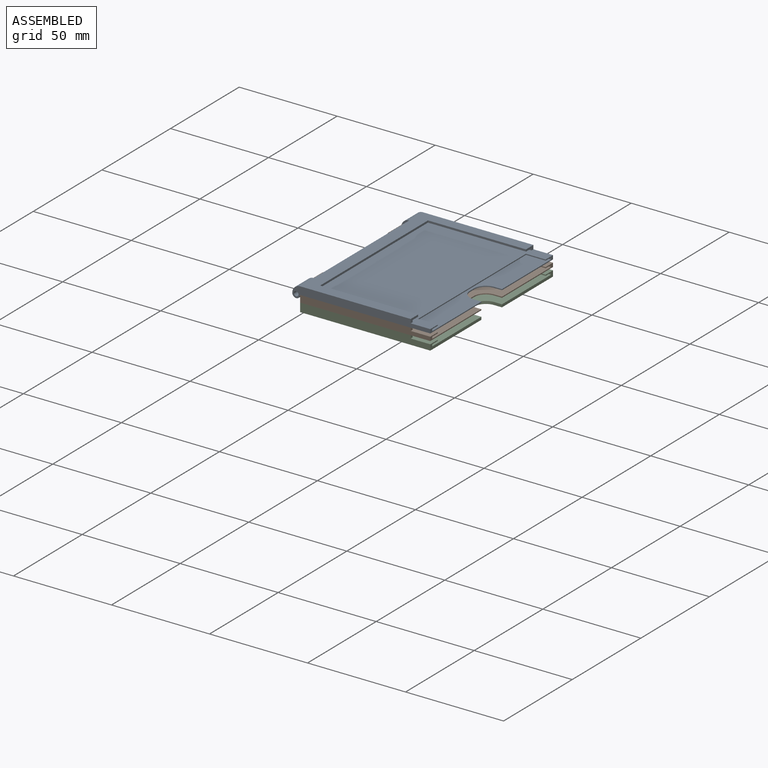
[diagram: assembled view]
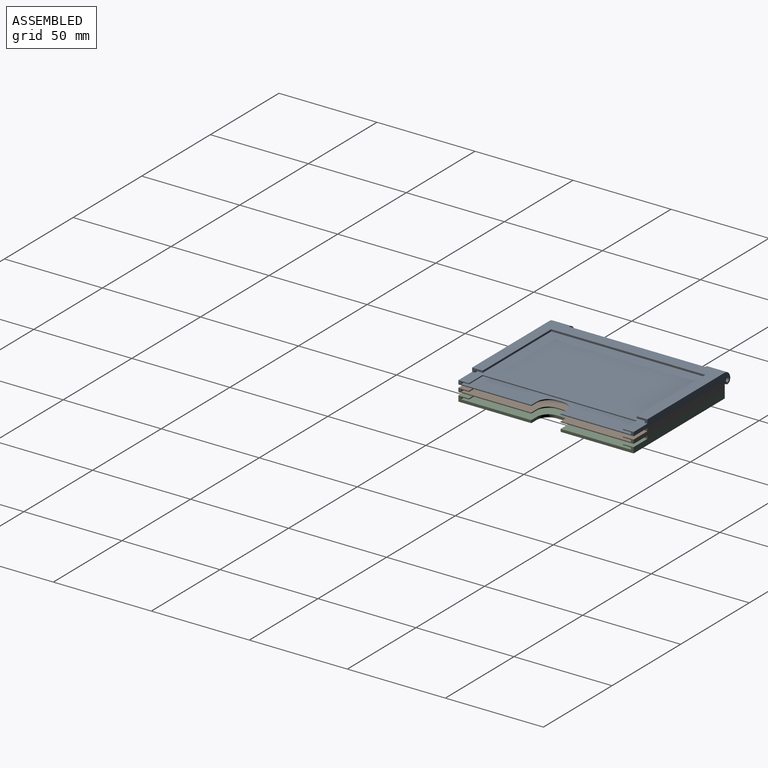
[diagram: assembled view, second angle]
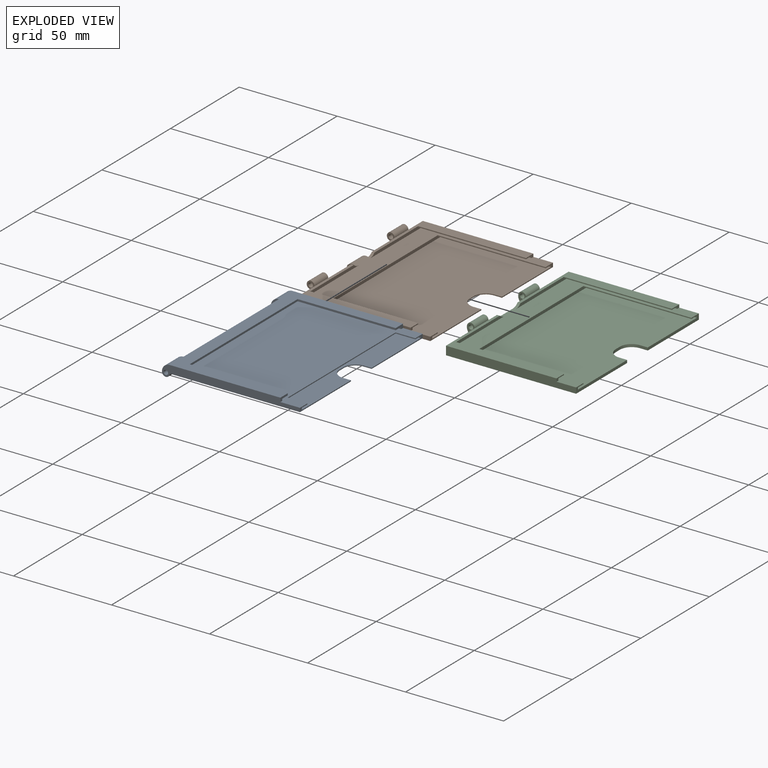
[diagram: exploded view]
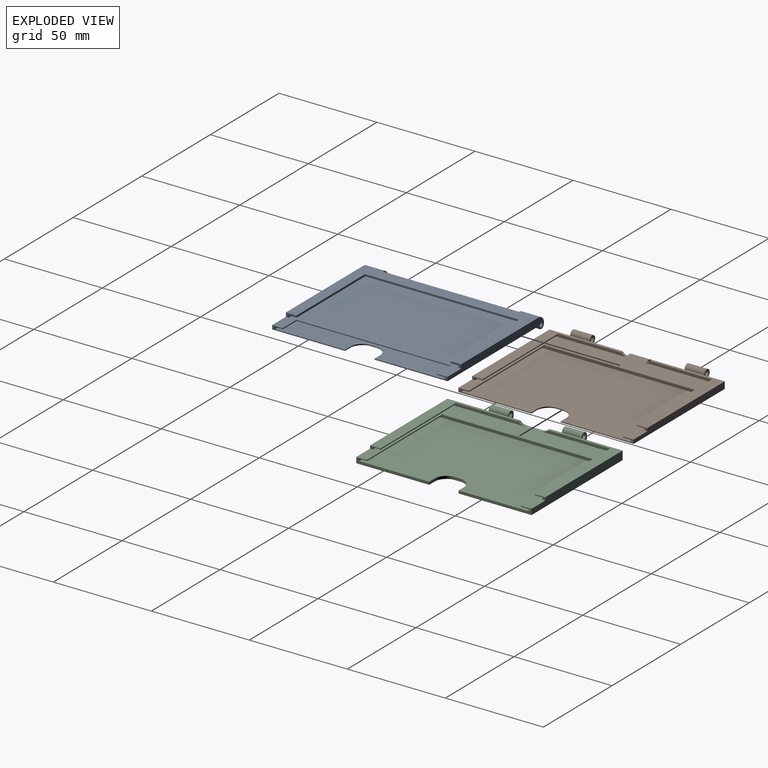
[diagram: exploded view, second angle]
ASSEMBLY  parts=3 mates=6
PART A: 38 faces, bbox 70.4x89.4x6 mm
  f0: plane 69.4x4mm, normal (-1,0,0), area 277.6mm2, adj f2,f5,f33,f37
  f1: plane 37.2x2mm, normal (1,0,0), area 22.7mm2, adj f2,f12,f13,f14,f15,f16,f18,f26
  f2: plane 89.4x66.4mm, normal (0,0,-1), area 5801.6mm2, adj f0,f1,f4,f10,f12,f23,f24,f25
  f3: plane 50x1mm, normal (0,1,0), area 50mm2, adj f5,f8,f22,f29
  f4: plane 70.4x6mm, normal (0,-1,0), area 260.3mm2, adj f2,f5,f10,f13,f22,f30,f31,f32
  f5: plane 89.4x56.4mm, normal (0,0,1), area 1112.2mm2, adj f0,f3,f4,f6,f12,f21,f22,f29
  f6: plane 50x1mm, normal (0,-1,0), area 50mm2, adj f5,f8,f21,f29
  f7: plane 55x1mm, normal (0,1,0), area 55mm2, adj f8,f11,f13,f22
  f8: plane 86.6x55mm, normal (0,0,-1), area 833mm2, adj f3,f6,f7,f9,f11,f21,f22,f29
  f9: plane 55x1mm, normal (0,-1,0), area 55mm2, adj f8,f11,f13,f21
  f10: plane 37.2x2mm, normal (1,0,0), area 22.7mm2, adj f2,f4,f13,f16,f17,f18,f19,f25
  f11: plane 86.6x1mm, normal (1,0,0), area 86.6mm2, adj f7,f8,f9,f13
  f12: plane 70.4x6mm, normal (0,1,0), area 260.3mm2, adj f1,f2,f5,f13,f21,f34,f35,f36
  f13: plane 89.4x65mm, normal (0,0,1), area 4871mm2, adj f1,f4,f7,f9,f10,f11,f12,f14
  f14: plane 10x0.5mm, normal (0,-1,0), area 5mm2, adj f1,f13,f18,f28
  f15: plane 55x1mm, normal (0,-1,0), area 55mm2, adj f1,f16,f18,f20
  f16: plane 86.6x55mm, normal (0,0,1), area 4628.5mm2, adj f1,f10,f15,f17,f20,f23,f24,f25
  f17: plane 55x1mm, normal (0,1,0), area 55mm2, adj f10,f16,f18,f20
  f18: plane 86.6x55mm, normal (0,0,-1), area 3977mm2, adj f1,f10,f14,f15,f17,f19,f20,f28
  f19: plane 10x0.5mm, normal (0,1,0), area 5mm2, adj f10,f13,f18,f28
  f20: plane 86.6x1mm, normal (1,0,0), area 86.6mm2, adj f15,f16,f17,f18
  f21: plane 5.4x2mm, normal (1,0,0), area 6.8mm2, adj f5,f6,f8,f9,f12,f13
  f22: plane 5.4x2mm, normal (1,0,0), area 6.8mm2, adj f3,f4,f5,f7,f8,f13
  f23: plane 3x0.5mm, normal (1,0,0), area 1.5mm2, adj f2,f16,f24,f27
  f24: cylinder r=6mm len=6mm, axis (0,0,-1), area 4.7mm2, adj f2,f16,f23,f25
  f25: plane 4x0.5mm, normal (0,1,0), area 2mm2, adj f2,f10,f16,f24
  f26: plane 4x0.5mm, normal (0,-1,0), area 2mm2, adj f1,f2,f16,f27
  f27: cylinder r=6mm len=6mm, axis (0,0,-1), area 4.7mm2, adj f2,f16,f23,f26
  f28: plane 78.6x0.5mm, normal (1,0,0), area 39.3mm2, adj f13,f14,f18,f19
  f29: plane 78.6x1mm, normal (1,0,0), area 78.6mm2, adj f3,f5,f6,f8
  f30: cylinder r=4mm len=10mm, axis (0,-1,0), area 62.8mm2, adj f4,f5,f31,f33
  f31: cylinder r=2mm len=10mm, axis (0,-1,0), area 62.8mm2, adj f2,f4,f30,f33
  f32: cylinder r=1.15mm len=10mm, axis (0,-1,0), area 72.3mm2, adj f4,f33
  f33: plane 6x4mm, normal (0,1,0), area 14.7mm2, adj f0,f30,f31,f32
  f34: cylinder r=4mm len=10mm, axis (0,1,0), area 62.8mm2, adj f5,f12,f35,f37
  f35: cylinder r=2mm len=10mm, axis (0,1,0), area 62.8mm2, adj f2,f12,f34,f37
  f36: cylinder r=1.15mm len=10mm, axis (0,1,0), area 72.3mm2, adj f12,f37
  f37: plane 6x4mm, normal (0,-1,0), area 14.7mm2, adj f0,f34,f35,f36
PART B: 50 faces, bbox 70.4x89.4x7.5 mm
  f0: plane 40.65x3.5mm, normal (-1,0,0), area 112.8mm2, adj f3,f8,f16,f29,f41,f43,f44,f45
  f1: plane 40.65x3.5mm, normal (-1,0,0), area 112.8mm2, adj f3,f4,f7,f28,f36,f38,f39,f45
  f2: plane 37.2x2mm, normal (1,0,0), area 22.7mm2, adj f3,f16,f17,f18,f19,f20,f21,f33
  f3: plane 89.4x66.4mm, normal (0,0,-1), area 5801.6mm2, adj f0,f1,f2,f7,f14,f16,f30,f31
  f4: plane 56.4x37.2mm, normal (0,0,1), area 349.1mm2, adj f1,f5,f6,f7,f27,f28,f35
  f5: plane 39.25x1.5mm, normal (1,0,0), area 53.3mm2, adj f4,f6,f10,f11,f17,f28
  f6: plane 55x0.5mm, normal (0,1,0), area 27.5mm2, adj f4,f5,f11,f27
  f7: plane 66.4x3.5mm, normal (0,-1,0), area 217.4mm2, adj f1,f3,f4,f14,f17,f27
  f8: plane 56.4x37.2mm, normal (0,0,1), area 349.1mm2, adj f0,f9,f15,f16,f26,f29,f40
  f9: plane 55x0.5mm, normal (0,-1,0), area 27.5mm2, adj f8,f12,f15,f26
  f10: plane 55x1mm, normal (0,1,0), area 55mm2, adj f5,f11,f17,f27
  f11: plane 55x4mm, normal (0,0,-1), area 220mm2, adj f5,f6,f10,f27
  f12: plane 55x4mm, normal (0,0,-1), area 220mm2, adj f9,f13,f15,f26
  f13: plane 55x1mm, normal (0,-1,0), area 55mm2, adj f12,f15,f17,f26
  f14: plane 37.2x2mm, normal (1,0,0), area 22.7mm2, adj f3,f7,f17,f21,f22,f23,f24,f32
  f15: plane 39.25x1.5mm, normal (1,0,0), area 53.3mm2, adj f8,f9,f12,f13,f17,f29
  f16: plane 66.4x3.5mm, normal (0,1,0), area 217.4mm2, adj f0,f2,f3,f8,f17,f26
  f17: plane 89.4x66.4mm, normal (0,0,1), area 1345.3mm2, adj f2,f5,f7,f10,f13,f14,f15,f16
  f18: plane 55x0.5mm, normal (0,-1,0), area 27.5mm2, adj f2,f17,f19,f25
  f19: plane 55x4mm, normal (0,0,-1), area 220mm2, adj f2,f18,f20,f25
  f20: plane 55x1mm, normal (0,-1,0), area 55mm2, adj f2,f19,f21,f25
  f21: plane 86.6x55mm, normal (0,0,1), area 4628.5mm2, adj f2,f14,f20,f22,f25,f30,f31,f32
  f22: plane 55x1mm, normal (0,1,0), area 55mm2, adj f14,f21,f23,f25
  f23: plane 55x4mm, normal (0,0,-1), area 220mm2, adj f14,f22,f24,f25
  f24: plane 55x0.5mm, normal (0,1,0), area 27.5mm2, adj f14,f17,f23,f25
  f25: plane 86.6x1.5mm, normal (1,0,0), area 125.9mm2, adj f17,f18,f19,f20,f21,f22,f23,f24
  f26: plane 5.4x1.5mm, normal (1,0,0), area 4.1mm2, adj f8,f9,f12,f13,f16,f17
  f27: plane 5.4x1.5mm, normal (1,0,0), area 4.1mm2, adj f4,f6,f7,f10,f11,f17
  f28: cylinder r=4.71mm len=3.45mm, axis (1,0,0), area 5.4mm2, adj f1,f4,f5,f17
  f29: cylinder r=4.71mm len=3.45mm, axis (1,0,0), area 5.4mm2, adj f0,f8,f15,f17
  f30: plane 3x0.5mm, normal (1,0,0), area 1.5mm2, adj f3,f21,f31,f34
  f31: cylinder r=6mm len=6mm, axis (0,0,-1), area 4.7mm2, adj f3,f21,f30,f32
  f32: plane 4x0.5mm, normal (0,1,0), area 2mm2, adj f3,f14,f21,f31
  f33: plane 4x0.5mm, normal (0,-1,0), area 2mm2, adj f2,f3,f21,f34
  f34: cylinder r=6mm len=6mm, axis (0,0,-1), area 4.7mm2, adj f3,f21,f30,f33
  f35: cylinder r=2mm len=10mm, axis (0,-1,0), area 83.6mm2, adj f4,f36,f38,f39
  f36: cylinder r=5.06mm len=10mm, axis (0,-1,0), area 31.4mm2, adj f1,f35,f38,f39
  f37: cylinder r=1.15mm len=10mm, axis (0,-1,0), area 72.3mm2, adj f38,f39
  f38: plane 4.42x4mm, normal (0,1,0), area 10mm2, adj f1,f35,f36,f37
  f39: plane 4.42x4mm, normal (0,-1,0), area 10mm2, adj f1,f35,f36,f37
  f40: cylinder r=2mm len=10mm, axis (0,1,0), area 83.6mm2, adj f8,f41,f43,f44
  f41: cylinder r=5.06mm len=10mm, axis (0,1,0), area 31.4mm2, adj f0,f40,f43,f44
  f42: cylinder r=1.15mm len=10mm, axis (0,1,0), area 72.3mm2, adj f43,f44
  f43: plane 4.42x4mm, normal (0,-1,0), area 10mm2, adj f0,f40,f41,f42
  f44: plane 4.42x4mm, normal (0,1,0), area 10mm2, adj f0,f40,f41,f42
  f45: cylinder r=3.22mm len=10mm, axis (0,1,0), area 34.1mm2, adj f0,f1,f17,f46,f48,f49
  f46: cylinder r=2mm len=10mm, axis (0,1,0), area 81.1mm2, adj f3,f45,f48,f49
  f47: cylinder r=1.15mm len=10mm, axis (0,1,0), area 72.3mm2, adj f48,f49
  f48: plane 4.25x4mm, normal (0,-1,0), area 9.7mm2, adj f1,f45,f46,f47
  f49: plane 4.25x4mm, normal (0,1,0), area 9.7mm2, adj f0,f45,f46,f47
PART C: 46 faces, bbox 70.4x89.4x6.4 mm
  f0: plane 27.4x4.4mm, normal (-1,0,0), area 101.3mm2, adj f3,f4,f9,f18,f29,f30,f39,f44
  f1: plane 21x4.4mm, normal (-1,0,0), area 92.4mm2, adj f3,f4,f8,f40
  f2: plane 37.2x2.9mm, normal (1,0,0), area 56.2mm2, adj f3,f17,f18,f19,f20,f21,f22,f34
  f3: plane 89.4x66.4mm, normal (0,0,-1), area 5801.6mm2, adj f0,f1,f2,f6,f8,f15,f17,f31
  f4: plane 56.4x37.2mm, normal (0,0,1), area 349.1mm2, adj f0,f1,f5,f7,f8,f28,f29,f36
  f5: plane 39.25x1.5mm, normal (1,0,0), area 53.3mm2, adj f4,f7,f11,f12,f18,f29
  f6: plane 21x4.4mm, normal (-1,0,0), area 92.4mm2, adj f3,f9,f17,f45
  f7: plane 55x0.5mm, normal (0,1,0), area 27.5mm2, adj f4,f5,f12,f28
  f8: plane 66.4x4.4mm, normal (0,-1,0), area 277.2mm2, adj f1,f3,f4,f15,f18,f28
  f9: plane 56.4x37.2mm, normal (0,0,1), area 349.1mm2, adj f0,f6,f10,f16,f17,f27,f30,f41
  f10: plane 55x0.5mm, normal (0,-1,0), area 27.5mm2, adj f9,f13,f16,f27
  f11: plane 55x1mm, normal (0,1,0), area 55mm2, adj f5,f12,f18,f28
  f12: plane 55x4mm, normal (0,0,-1), area 220mm2, adj f5,f7,f11,f28
  f13: plane 55x4mm, normal (0,0,-1), area 220mm2, adj f10,f14,f16,f27
  f14: plane 55x1mm, normal (0,-1,0), area 55mm2, adj f13,f16,f18,f27
  f15: plane 37.2x2.9mm, normal (1,0,0), area 56.2mm2, adj f3,f8,f18,f22,f23,f24,f25,f33
  f16: plane 39.25x1.5mm, normal (1,0,0), area 53.3mm2, adj f9,f10,f13,f14,f18,f30
  f17: plane 66.4x4.4mm, normal (0,1,0), area 277.2mm2, adj f2,f3,f6,f9,f18,f27
  f18: plane 89.4x66.4mm, normal (0,0,1), area 1345.3mm2, adj f0,f2,f5,f8,f11,f14,f15,f16
  f19: plane 55x0.5mm, normal (0,-1,0), area 27.5mm2, adj f2,f18,f20,f26
  f20: plane 55x4mm, normal (0,0,-1), area 220mm2, adj f2,f19,f21,f26
  f21: plane 55x1mm, normal (0,-1,0), area 55mm2, adj f2,f20,f22,f26
  f22: plane 86.6x55mm, normal (0,0,1), area 4628.5mm2, adj f2,f15,f21,f23,f26,f31,f32,f33
  f23: plane 55x1mm, normal (0,1,0), area 55mm2, adj f15,f22,f24,f26
  f24: plane 55x4mm, normal (0,0,-1), area 220mm2, adj f15,f23,f25,f26
  f25: plane 55x0.5mm, normal (0,1,0), area 27.5mm2, adj f15,f18,f24,f26
  f26: plane 86.6x1.5mm, normal (1,0,0), area 125.9mm2, adj f18,f19,f20,f21,f22,f23,f24,f25
  f27: plane 5.4x1.5mm, normal (1,0,0), area 4.1mm2, adj f9,f10,f13,f14,f17,f18
  f28: plane 5.4x1.5mm, normal (1,0,0), area 4.1mm2, adj f4,f7,f8,f11,f12,f18
  f29: cylinder r=4.71mm len=3.45mm, axis (1,0,0), area 5.4mm2, adj f0,f4,f5,f18
  f30: cylinder r=4.71mm len=3.45mm, axis (1,0,0), area 5.4mm2, adj f0,f9,f16,f18
  f31: plane 3x1.4mm, normal (1,0,0), area 4.2mm2, adj f3,f22,f32,f35
  f32: cylinder r=6mm len=6mm, axis (0,0,-1), area 13.2mm2, adj f3,f22,f31,f33
  f33: plane 4x1.4mm, normal (0,1,0), area 5.6mm2, adj f3,f15,f22,f32
  f34: plane 4x1.4mm, normal (0,-1,0), area 5.6mm2, adj f2,f3,f22,f35
  f35: cylinder r=6mm len=6mm, axis (0,0,-1), area 13.2mm2, adj f3,f22,f31,f34
  f36: cylinder r=2mm len=10mm, axis (0,-1,0), area 59.2mm2, adj f4,f38,f39,f40
  f37: cylinder r=1.15mm len=10mm, axis (0,-1,0), area 72.3mm2, adj f39,f40
  f38: cylinder r=4.03mm len=10mm, axis (0,-1,0), area 70.7mm2, adj f3,f36,f39,f40
  f39: plane 6.4x4.03mm, normal (0,1,0), area 16.4mm2, adj f0,f36,f37,f38
  f40: plane 6.4x4.03mm, normal (0,-1,0), area 16.4mm2, adj f1,f36,f37,f38
  f41: cylinder r=2mm len=10mm, axis (0,1,0), area 59.2mm2, adj f9,f43,f44,f45
  f42: cylinder r=1.15mm len=10mm, axis (0,1,0), area 72.3mm2, adj f44,f45
  f43: cylinder r=4.03mm len=10mm, axis (0,1,0), area 70.7mm2, adj f3,f41,f44,f45
  f44: plane 6.4x4.03mm, normal (0,-1,0), area 16.4mm2, adj f0,f41,f42,f43
  f45: plane 6.4x4.03mm, normal (0,1,0), area 16.4mm2, adj f6,f41,f42,f43
PLACE A t=(-31.14,0,3.5)mm
PLACE B t=(-31.14,0,0)mm fixed
PLACE C t=(-31.14,0,-4.4)mm
MATE planar A.f12 <-> B.f16  axis (0,1,0) through (-3.48,44.7,5.37)mm
MATE planar C.f0 <-> B.f0  axis (-1,0,0) through (-32.54,18.7,0)mm
MATE planar A.f0 <-> B.f1  axis (-1,0,0) through (-32.54,0,5.5)mm
MATE planar C.f4 <-> B.f3  axis (0,0,1) through (-31.14,-39.3,0)mm
MATE planar C.f8 <-> B.f7  axis (0,-1,0) through (-0.86,-44.7,-2.28)mm
MATE planar A.f2 <-> B.f8  axis (0,0,-1) through (0,0,3.5)mm
